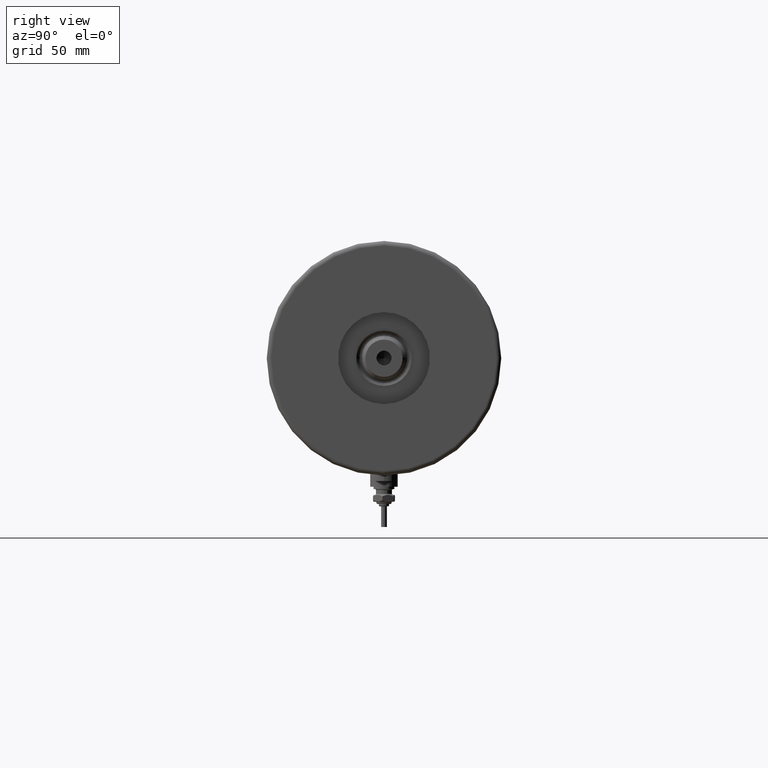
[diagram: clean part render]
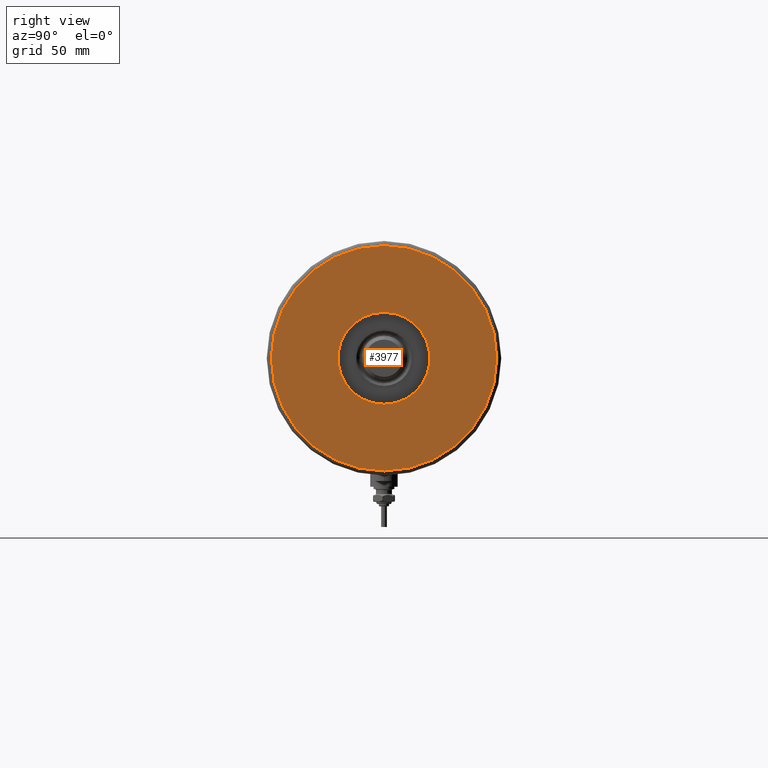
[diagram: same view with one face highlighted and labeled with its STEP entity id]
A machine part, right view. The second image highlights one B-rep face of the part: STEP entity #3977.
In plain terms, the highlighted planar face has unit normal (1, 0, -0).
Its self-contained STEP definition (entity closure, byte-faithful):
#112 = CIRCLE ( 'NONE', #5531, 20.00000000000000000 ) ;
#398 = DIRECTION ( 'NONE',  ( 1.000000000000000000, 0.000000000000000000, -0.000000000000000000 ) ) ;
#483 = CARTESIAN_POINT ( 'NONE',  ( -20.00000000000000000, 2.449293598294706513E-15, 28.00000000000000000 ) ) ;
#725 = AXIS2_PLACEMENT_3D ( 'NONE', #3531, #1409, #5576 ) ;
#901 = CARTESIAN_POINT ( 'NONE',  ( 0.000000000000000000, 0.000000000000000000, 28.00000000000000000 ) ) ;
#964 = EDGE_CURVE ( 'NONE', #4353, #1412, #6476, .T. ) ;
#1007 = CARTESIAN_POINT ( 'NONE',  ( 0.000000000000000000, 0.000000000000000000, 28.00000000000000000 ) ) ;
#1409 = DIRECTION ( 'NONE',  ( 0.000000000000000000, 0.000000000000000000, 1.000000000000000000 ) ) ;
#1412 = VERTEX_POINT ( 'NONE', #483 ) ;
#1447 = DIRECTION ( 'NONE',  ( 1.000000000000000000, 0.000000000000000000, 0.000000000000000000 ) ) ;
#1963 = DIRECTION ( 'NONE',  ( 0.000000000000000000, 0.000000000000000000, 1.000000000000000000 ) ) ;
#2118 = ORIENTED_EDGE ( 'NONE', *, *, #3282, .T. ) ;
#2316 = ORIENTED_EDGE ( 'NONE', *, *, #964, .F. ) ;
#2894 = DIRECTION ( 'NONE',  ( 0.000000000000000000, 0.000000000000000000, 1.000000000000000000 ) ) ;
#3143 = AXIS2_PLACEMENT_3D ( 'NONE', #3239, #4867, #3335 ) ;
#3187 = EDGE_LOOP ( 'NONE', ( #2316, #3715 ) ) ;
#3239 = CARTESIAN_POINT ( 'NONE',  ( 0.000000000000000000, 0.000000000000000000, 28.00000000000000000 ) ) ;
#3282 = EDGE_CURVE ( 'NONE', #5060, #3372, #3885, .T. ) ;
#3320 = ORIENTED_EDGE ( 'NONE', *, *, #3999, .T. ) ;
#3335 = DIRECTION ( 'NONE',  ( 1.000000000000000000, 0.000000000000000000, 0.000000000000000000 ) ) ;
#3372 = VERTEX_POINT ( 'NONE', #6051 ) ;
#3420 = EDGE_LOOP ( 'NONE', ( #2118, #3320 ) ) ;
#3470 = CARTESIAN_POINT ( 'NONE',  ( 0.000000000000000000, 0.000000000000000000, 28.00000000000000000 ) ) ;
#3531 = CARTESIAN_POINT ( 'NONE',  ( 0.000000000000000000, 0.000000000000000000, 28.00000000000000000 ) ) ;
#3715 = ORIENTED_EDGE ( 'NONE', *, *, #5012, .F. ) ;
#3885 = CIRCLE ( 'NONE', #3143, 48.99999999999998579 ) ;
#3977 = ADVANCED_FACE ( 'NONE', ( #5143, #6625 ), #5685, .T. ) ;
#3999 = EDGE_CURVE ( 'NONE', #3372, #5060, #4872, .T. ) ;
#4331 = AXIS2_PLACEMENT_3D ( 'NONE', #1007, #6120, #1447 ) ;
#4353 = VERTEX_POINT ( 'NONE', #6211 ) ;
#4867 = DIRECTION ( 'NONE',  ( 0.000000000000000000, 0.000000000000000000, 1.000000000000000000 ) ) ;
#4872 = CIRCLE ( 'NONE', #4331, 48.99999999999998579 ) ;
#5012 = EDGE_CURVE ( 'NONE', #1412, #4353, #112, .T. ) ;
#5060 = VERTEX_POINT ( 'NONE', #5452 ) ;
#5143 = FACE_OUTER_BOUND ( 'NONE', #3420, .T. ) ;
#5435 = AXIS2_PLACEMENT_3D ( 'NONE', #901, #1963, #398 ) ;
#5452 = CARTESIAN_POINT ( 'NONE',  ( 48.99999999999998579, 0.000000000000000000, 28.00000000000000000 ) ) ;
#5531 = AXIS2_PLACEMENT_3D ( 'NONE', #3470, #2894, #5954 ) ;
#5576 = DIRECTION ( 'NONE',  ( 1.000000000000000000, 0.000000000000000000, 0.000000000000000000 ) ) ;
#5685 = PLANE ( 'NONE',  #5435 ) ;
#5954 = DIRECTION ( 'NONE',  ( 1.000000000000000000, 0.000000000000000000, 0.000000000000000000 ) ) ;
#6051 = CARTESIAN_POINT ( 'NONE',  ( -48.99999999999998579, 6.123233995736764507E-15, 28.00000000000000000 ) ) ;
#6120 = DIRECTION ( 'NONE',  ( 0.000000000000000000, 0.000000000000000000, 1.000000000000000000 ) ) ;
#6211 = CARTESIAN_POINT ( 'NONE',  ( 20.00000000000000000, 0.000000000000000000, 28.00000000000000000 ) ) ;
#6476 = CIRCLE ( 'NONE', #725, 20.00000000000000000 ) ;
#6625 = FACE_BOUND ( 'NONE', #3187, .T. ) ;